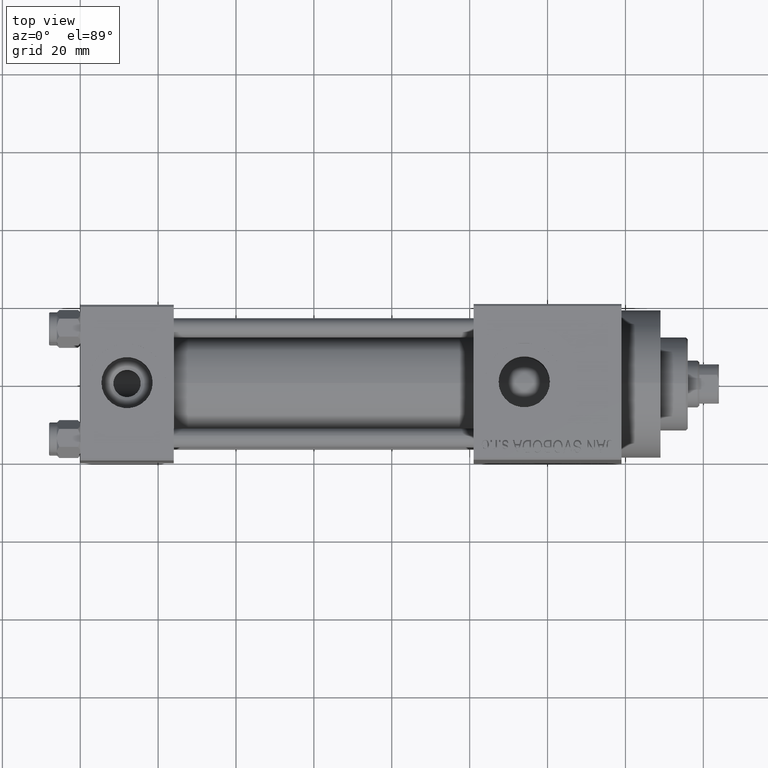
[diagram: clean part render]
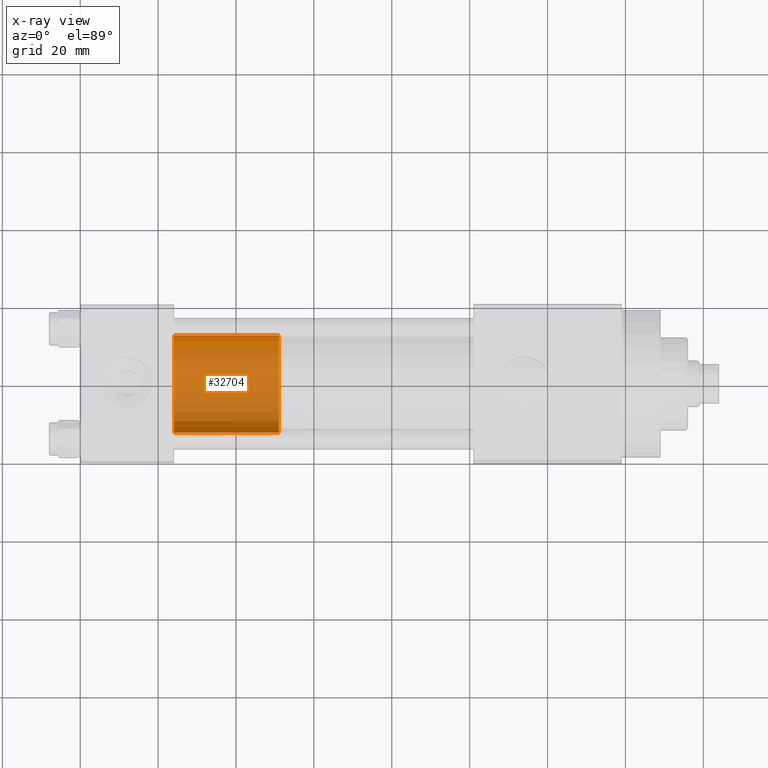
[diagram: x-ray — body ghosted, one internal face saturated and labeled with its STEP entity id]
A machine part, top view, then the same camera in x-ray: the body is ghosted and one INTERNAL B-rep face — a face not visible from any outside direction — is saturated and labeled: STEP entity #32704.
In plain terms, the highlighted cylindrical surface (partial cylindrical patch) has radius 12.5 mm, axis along (-1, 0, 0).
Its self-contained STEP definition (entity closure, byte-faithful):
#2932 = CARTESIAN_POINT ( 'NONE',  ( 12.50000000000000000, 1.530808498934191521E-15, 27.00000000000000000 ) ) ;
#3722 = VERTEX_POINT ( 'NONE', #30374 ) ;
#6475 = ORIENTED_EDGE ( 'NONE', *, *, #39808, .F. ) ;
#6868 = LINE ( 'NONE', #17803, #43139 ) ;
#7280 = CARTESIAN_POINT ( 'NONE',  ( -12.50000000000000000, 0.000000000000000000, 27.00000000000000000 ) ) ;
#7743 = CARTESIAN_POINT ( 'NONE',  ( 0.000000000000000000, 0.000000000000000000, 27.00000000000000000 ) ) ;
#8947 = LINE ( 'NONE', #31089, #24780 ) ;
#9136 = VERTEX_POINT ( 'NONE', #7280 ) ;
#10671 = DIRECTION ( 'NONE',  ( -0.000000000000000000, -0.000000000000000000, -1.000000000000000000 ) ) ;
#11153 = CIRCLE ( 'NONE', #43864, 12.50000000000000000 ) ;
#12387 = ORIENTED_EDGE ( 'NONE', *, *, #39884, .F. ) ;
#12515 = VERTEX_POINT ( 'NONE', #41987 ) ;
#12651 = AXIS2_PLACEMENT_3D ( 'NONE', #24601, #28404, #42923 ) ;
#13151 = ORIENTED_EDGE ( 'NONE', *, *, #33014, .T. ) ;
#14860 = AXIS2_PLACEMENT_3D ( 'NONE', #7743, #43718, #22278 ) ;
#16748 = FACE_OUTER_BOUND ( 'NONE', #32947, .T. ) ;
#17803 = CARTESIAN_POINT ( 'NONE',  ( 12.50000000000000000, 1.530808498934191521E-15, 27.00000000000000000 ) ) ;
#22278 = DIRECTION ( 'NONE',  ( 1.000000000000000000, 0.000000000000000000, 0.000000000000000000 ) ) ;
#23243 = DIRECTION ( 'NONE',  ( -0.000000000000000000, -0.000000000000000000, -1.000000000000000000 ) ) ;
#23860 = DIRECTION ( 'NONE',  ( 0.000000000000000000, 0.000000000000000000, 1.000000000000000000 ) ) ;
#24601 = CARTESIAN_POINT ( 'NONE',  ( 0.000000000000000000, 0.000000000000000000, 27.00000000000000000 ) ) ;
#24780 = VECTOR ( 'NONE', #23243, 1000.000000000000000 ) ;
#28133 = DIRECTION ( 'NONE',  ( 1.000000000000000000, 0.000000000000000000, 0.000000000000000000 ) ) ;
#28404 = DIRECTION ( 'NONE',  ( -0.000000000000000000, -0.000000000000000000, -1.000000000000000000 ) ) ;
#29647 = ORIENTED_EDGE ( 'NONE', *, *, #38174, .T. ) ;
#30374 = CARTESIAN_POINT ( 'NONE',  ( 12.50000000000000000, 1.530808498934191521E-15, 0.000000000000000000 ) ) ;
#31089 = CARTESIAN_POINT ( 'NONE',  ( -12.50000000000000000, 0.000000000000000000, 27.00000000000000000 ) ) ;
#31287 = CYLINDRICAL_SURFACE ( 'NONE', #12651, 12.50000000000000000 ) ;
#32704 = ADVANCED_FACE ( 'NONE', ( #16748 ), #31287, .T. ) ;
#32712 = VERTEX_POINT ( 'NONE', #2932 ) ;
#32947 = EDGE_LOOP ( 'NONE', ( #6475, #29647, #13151, #12387 ) ) ;
#33014 = EDGE_CURVE ( 'NONE', #3722, #12515, #11153, .T. ) ;
#35044 = CARTESIAN_POINT ( 'NONE',  ( 0.000000000000000000, 0.000000000000000000, 0.000000000000000000 ) ) ;
#36898 = CIRCLE ( 'NONE', #14860, 12.50000000000000000 ) ;
#38174 = EDGE_CURVE ( 'NONE', #32712, #3722, #6868, .T. ) ;
#39808 = EDGE_CURVE ( 'NONE', #32712, #9136, #36898, .T. ) ;
#39884 = EDGE_CURVE ( 'NONE', #9136, #12515, #8947, .T. ) ;
#41987 = CARTESIAN_POINT ( 'NONE',  ( -12.50000000000000000, 0.000000000000000000, 0.000000000000000000 ) ) ;
#42923 = DIRECTION ( 'NONE',  ( -1.000000000000000000, 0.000000000000000000, 0.000000000000000000 ) ) ;
#43139 = VECTOR ( 'NONE', #10671, 1000.000000000000000 ) ;
#43718 = DIRECTION ( 'NONE',  ( 0.000000000000000000, 0.000000000000000000, 1.000000000000000000 ) ) ;
#43864 = AXIS2_PLACEMENT_3D ( 'NONE', #35044, #23860, #28133 ) ;